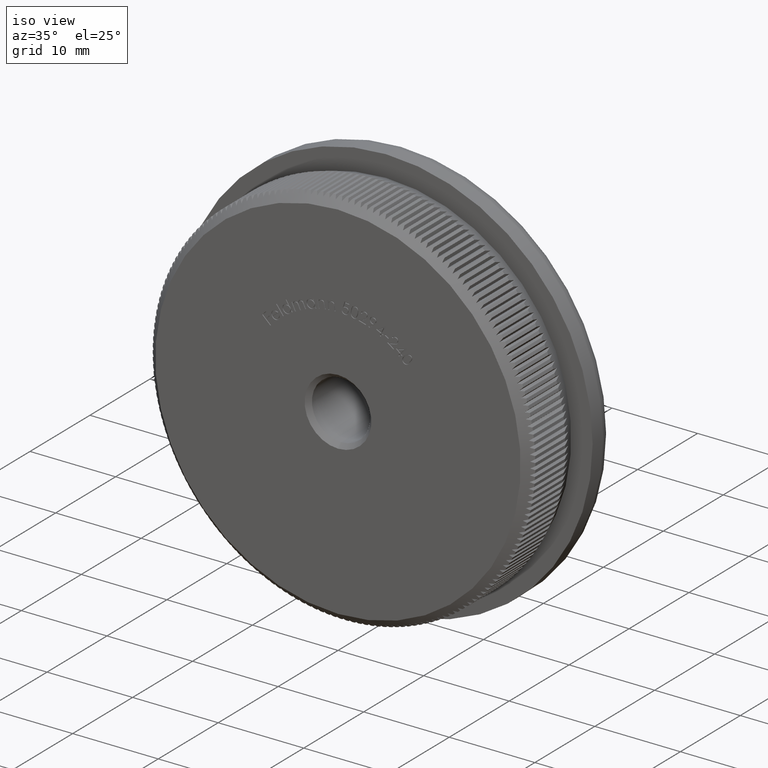
[diagram: clean part render]
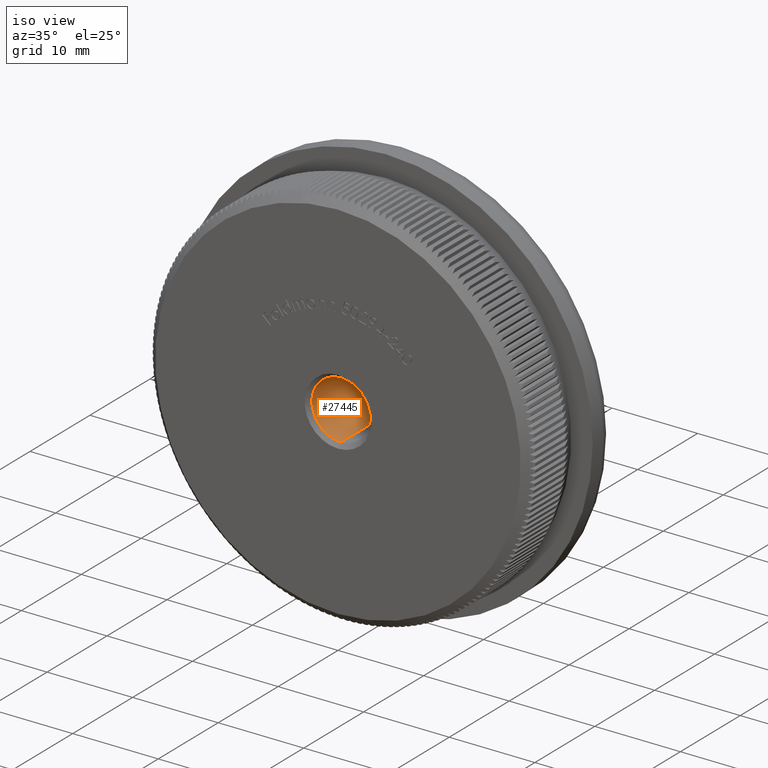
[diagram: same view with one face highlighted and labeled with its STEP entity id]
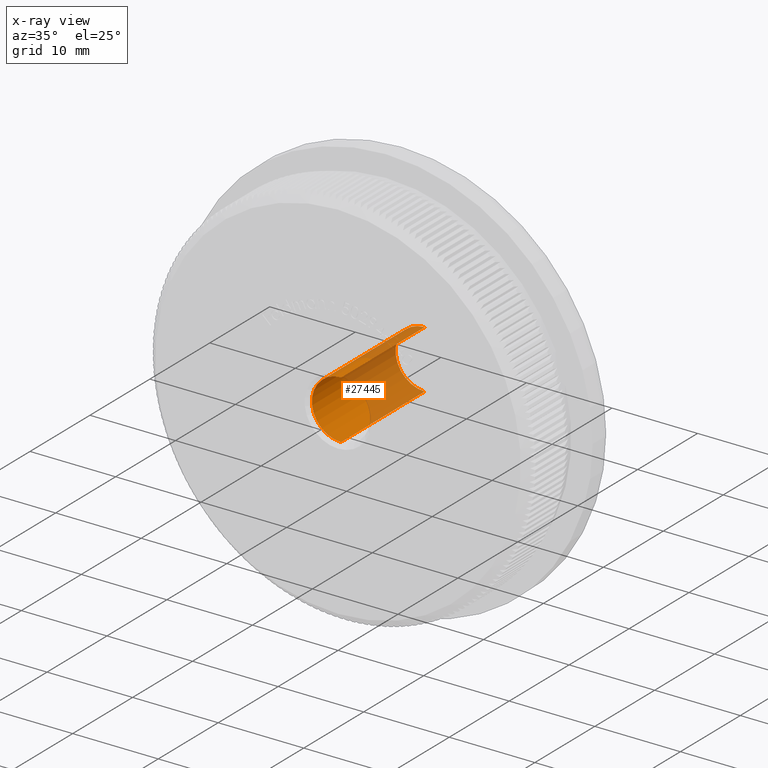
[diagram: x-ray of the same camera — body ghosted, the highlighted face saturated]
A machine part, iso view. The second image highlights one B-rep face of the part: STEP entity #27445.
The next image is the same camera in x-ray: the body ghosted, the highlighted face saturated — about 52% of this face is hidden behind the body in this view.
In plain terms, the highlighted cylindrical surface (edge-blend (fillet) strip) has radius 3.4 mm, axis along (-0, -1, -0).
Its self-contained STEP definition (entity closure, byte-faithful):
#3862 = VECTOR ( 'NONE', #17896, 1000.000000000000000 ) ;
#4382 = DIRECTION ( 'NONE',  ( 0.0000000000000000000, 0.0000000000000000000, -1.000000000000000000 ) ) ;
#5165 = ORIENTED_EDGE ( 'NONE', *, *, #5364, .T. ) ;
#5364 = EDGE_CURVE ( 'NONE', #11681, #9426, #30022, .T. ) ;
#5418 = CARTESIAN_POINT ( 'NONE',  ( 0.0000000000000000000, 14.45906987097148100, -3.399999999999995500 ) ) ;
#6634 = EDGE_CURVE ( 'NONE', #20876, #11681, #9386, .T. ) ;
#7211 = CARTESIAN_POINT ( 'NONE',  ( 0.0000000000000000000, 14.45906987097148100, 0.0000000000000000000 ) ) ;
#7930 = LINE ( 'NONE', #29598, #30862 ) ;
#9386 = CIRCLE ( 'NONE', #23851, 3.399999999999995500 ) ;
#9426 = VERTEX_POINT ( 'NONE', #23400 ) ;
#9612 = DIRECTION ( 'NONE',  ( 0.0000000000000000000, -1.000000000000000000, 0.0000000000000000000 ) ) ;
#11681 = VERTEX_POINT ( 'NONE', #31079 ) ;
#11814 = AXIS2_PLACEMENT_3D ( 'NONE', #19671, #9612, #12144 ) ;
#12144 = DIRECTION ( 'NONE',  ( 0.0000000000000000000, 0.0000000000000000000, -1.000000000000000000 ) ) ;
#12364 = DIRECTION ( 'NONE',  ( -0.0000000000000000000, -1.000000000000000000, -0.0000000000000000000 ) ) ;
#13011 = CARTESIAN_POINT ( 'NONE',  ( 0.0000000000000000000, 0.4999999999999891800, -3.399999999999995500 ) ) ;
#13867 = EDGE_LOOP ( 'NONE', ( #31591, #5165, #19894, #32660 ) ) ;
#14278 = DIRECTION ( 'NONE',  ( -0.0000000000000000000, -1.000000000000000000, -0.0000000000000000000 ) ) ;
#14593 = CYLINDRICAL_SURFACE ( 'NONE', #26916, 3.399999999999995500 ) ;
#14604 = DIRECTION ( 'NONE',  ( 0.0000000000000000000, 1.000000000000000000, 0.0000000000000000000 ) ) ;
#14833 = DIRECTION ( 'NONE',  ( 0.0000000000000000000, 0.0000000000000000000, 1.000000000000000000 ) ) ;
#15344 = CARTESIAN_POINT ( 'NONE',  ( 4.163799117100995600E-016, 0.0000000000000000000, 3.399999999999995500 ) ) ;
#17896 = DIRECTION ( 'NONE',  ( -0.0000000000000000000, -1.000000000000000000, -0.0000000000000000000 ) ) ;
#19671 = CARTESIAN_POINT ( 'NONE',  ( 0.0000000000000000000, 0.4999999999999891800, 0.0000000000000000000 ) ) ;
#19894 = ORIENTED_EDGE ( 'NONE', *, *, #25825, .T. ) ;
#20180 = CIRCLE ( 'NONE', #11814, 3.399999999999995500 ) ;
#20876 = VERTEX_POINT ( 'NONE', #5418 ) ;
#23400 = CARTESIAN_POINT ( 'NONE',  ( 4.163799117100995600E-016, 0.4999999999999891800, 3.399999999999995500 ) ) ;
#23728 = VERTEX_POINT ( 'NONE', #13011 ) ;
#23851 = AXIS2_PLACEMENT_3D ( 'NONE', #7211, #14604, #14833 ) ;
#25825 = EDGE_CURVE ( 'NONE', #9426, #23728, #20180, .T. ) ;
#26416 = EDGE_CURVE ( 'NONE', #20876, #23728, #7930, .T. ) ;
#26916 = AXIS2_PLACEMENT_3D ( 'NONE', #32367, #12364, #4382 ) ;
#27445 = ADVANCED_FACE ( 'NONE', ( #27735 ), #14593, .F. ) ;
#27735 = FACE_OUTER_BOUND ( 'NONE', #13867, .T. ) ;
#29598 = CARTESIAN_POINT ( 'NONE',  ( 0.0000000000000000000, 0.0000000000000000000, -3.399999999999995500 ) ) ;
#30022 = LINE ( 'NONE', #15344, #3862 ) ;
#30862 = VECTOR ( 'NONE', #14278, 1000.000000000000000 ) ;
#31079 = CARTESIAN_POINT ( 'NONE',  ( 4.163799117100995600E-016, 14.45906987097148100, 3.399999999999995500 ) ) ;
#31591 = ORIENTED_EDGE ( 'NONE', *, *, #6634, .T. ) ;
#32367 = CARTESIAN_POINT ( 'NONE',  ( 0.0000000000000000000, 0.0000000000000000000, 0.0000000000000000000 ) ) ;
#32660 = ORIENTED_EDGE ( 'NONE', *, *, #26416, .F. ) ;